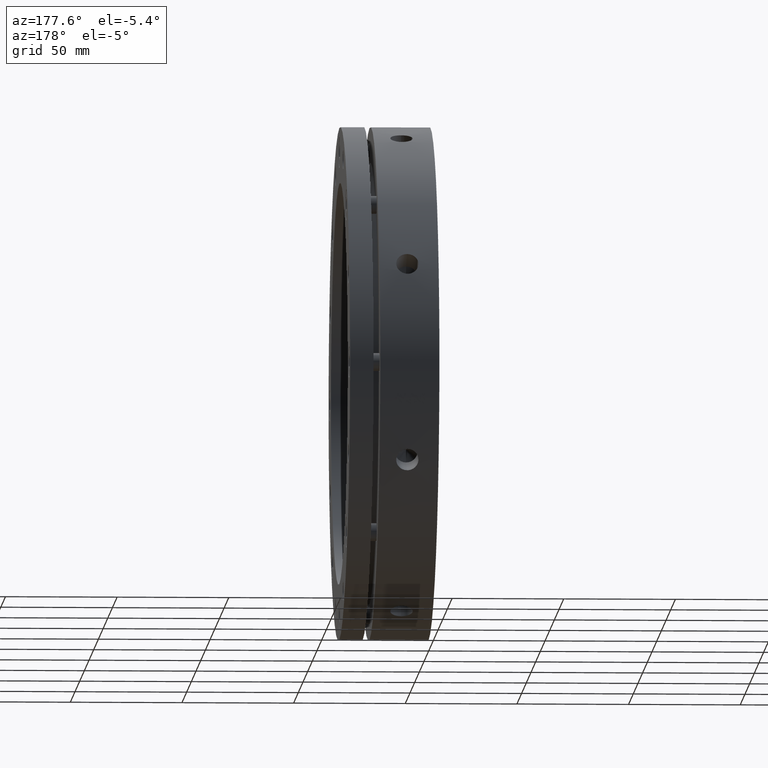
[diagram: clean part render]
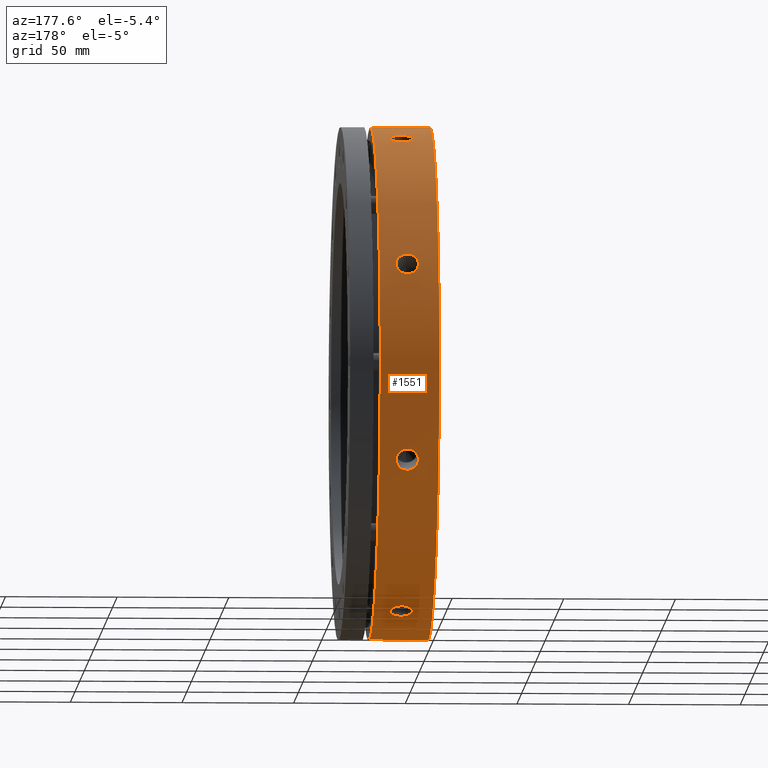
[diagram: same view with one face highlighted and labeled with its STEP entity id]
A machine part, auxiliary view. The second image highlights one B-rep face of the part: STEP entity #1551.
In plain terms, the highlighted cylindrical surface (partial cylindrical patch) has radius 115 mm, axis along (1, 0, 0).
Its self-contained STEP definition (entity closure, byte-faithful):
#753 = DIRECTION ( 'NONE',  ( 1.000000000000000000, 0.0000000000000000000, 0.0000000000000000000 ) ) ;
#755 = DIRECTION ( 'NONE',  ( 0.0000000000000000000, 0.0000000000000000000, -1.000000000000000000 ) ) ;
#756 = CARTESIAN_POINT ( 'NONE',  ( 19.99999999999996800, 0.0000000000000000000, 0.0000000000000000000 ) ) ;
#977 = CARTESIAN_POINT ( 'NONE',  ( -3.469446951953614200E-014, 0.0000000000000000000, -115.0000000000000000 ) ) ;
#978 = CARTESIAN_POINT ( 'NONE',  ( 13.99999999999997300, 39.34758135771272700, 108.0590942091325200 ) ) ;
#983 = CARTESIAN_POINT ( 'NONE',  ( 13.99999999999997300, 104.2322598854816400, -48.58637668282557300 ) ) ;
#993 = CARTESIAN_POINT ( 'NONE',  ( 13.99999999999997300, 48.58637668282557300, -104.2322598854816400 ) ) ;
#1011 = CARTESIAN_POINT ( 'NONE',  ( 13.99999999999997300, 48.58637668282559500, 104.2322598854816200 ) ) ;
#1022 = CARTESIAN_POINT ( 'NONE',  ( -3.469446951953614200E-014, 1.408343819019456100E-014, 115.0000000000000000 ) ) ;
#1033 = CARTESIAN_POINT ( 'NONE',  ( 26.49999999999996800, 0.0000000000000000000, -115.0000000000000000 ) ) ;
#1038 = CARTESIAN_POINT ( 'NONE',  ( 13.99999999999997300, 104.2322598854816400, 48.58637668282557300 ) ) ;
#1151 = LINE ( 'NONE', #2800, #1155 ) ;
#1155 = VECTOR ( 'NONE', #2801, 1000.000000000000000 ) ;
#1167 = LINE ( 'NONE', #2815, #1179 ) ;
#1176 = CIRCLE ( 'NONE', #3977, 115.0000000000000000 ) ;
#1179 = VECTOR ( 'NONE', #2816, 1000.000000000000000 ) ;
#1180 = CIRCLE ( 'NONE', #3980, 115.0000000000000000 ) ;
#1206 = FACE_BOUND ( 'NONE', #3737, .T. ) ;
#1225 = FACE_BOUND ( 'NONE', #3757, .T. ) ;
#1240 = CYLINDRICAL_SURFACE ( 'NONE', #5076, 115.0000000000000000 ) ;
#1242 = FACE_OUTER_BOUND ( 'NONE', #3776, .T. ) ;
#1243 = FACE_BOUND ( 'NONE', #3784, .T. ) ;
#1252 = FACE_BOUND ( 'NONE', #3581, .T. ) ;
#1551 = ADVANCED_FACE ( 'NONE', ( #1206, #1225, #1252, #1243, #1242 ), #1240, .T. ) ;
#1753 = CARTESIAN_POINT ( 'NONE',  ( 26.49999999999996800, 1.408343819019456100E-014, 115.0000000000000000 ) ) ;
#1764 = CARTESIAN_POINT ( 'NONE',  ( 13.99999999999997300, 39.34758135771270600, -108.0590942091325400 ) ) ;
#1765 = CARTESIAN_POINT ( 'NONE',  ( 13.99999999999997300, 108.0590942091325400, -39.34758135771271300 ) ) ;
#1778 = CARTESIAN_POINT ( 'NONE',  ( 13.99999999999997300, 108.0590942091325400, 39.34758135771270600 ) ) ;
#1988 = CARTESIAN_POINT ( 'NONE',  ( 14.32609906256477700, 104.2322598854816500, -48.58637668282558100 ) ) ;
#1990 = CARTESIAN_POINT ( 'NONE',  ( 13.99999999999997300, 104.2322598854816400, -48.58637668282557300 ) ) ;
#1992 = CARTESIAN_POINT ( 'NONE',  ( 14.65731185210549500, 104.2460697528367700, -48.55678156171777700 ) ) ;
#1993 = CARTESIAN_POINT ( 'NONE',  ( 15.29845133233620500, 104.3000413991085500, -48.44074172316028600 ) ) ;
#1994 = CARTESIAN_POINT ( 'NONE',  ( 15.61007314606122000, 104.3399017707130600, -48.35494413919177200 ) ) ;
#1995 = CARTESIAN_POINT ( 'NONE',  ( 16.21531849951118800, 104.4451062255750000, -48.12728446271165000 ) ) ;
#1996 = CARTESIAN_POINT ( 'NONE',  ( 16.50799158775230400, 104.5106837244098000, -47.98489142952728100 ) ) ;
#1997 = CARTESIAN_POINT ( 'NONE',  ( 17.04961188382979400, 104.6613442074772800, -47.65538633492638400 ) ) ;
#1998 = CARTESIAN_POINT ( 'NONE',  ( 17.30205821270577400, 104.7469574252543100, -47.46714032900989400 ) ) ;
#1999 = CARTESIAN_POINT ( 'NONE',  ( 17.76877663485314700, 104.9388133542657300, -47.04147056226605600 ) ) ;
#2000 = CARTESIAN_POINT ( 'NONE',  ( 17.97587211182022300, 105.0421502029489300, -46.81046920813552200 ) ) ;
#2001 = CARTESIAN_POINT ( 'NONE',  ( 18.24733851649115800, 105.2066340527179400, -46.43901902477755100 ) ) ;
#2002 = CARTESIAN_POINT ( 'NONE',  ( 18.33133406947193900, 105.2630898565706600, -46.31093642007667900 ) ) ;
#2003 = CARTESIAN_POINT ( 'NONE',  ( 18.48605926902557400, 105.3792439482654500, -46.04601897177224900 ) ) ;
#2004 = CARTESIAN_POINT ( 'NONE',  ( 18.55697224099207800, 105.4391905635264500, -45.90860530439295000 ) ) ;
#2005 = CARTESIAN_POINT ( 'NONE',  ( 18.74510784355893700, 105.6200621361895500, -45.49169446275017500 ) ) ;
#2006 = CARTESIAN_POINT ( 'NONE',  ( 18.83958129150653300, 105.7430173839411200, -45.20527495662018700 ) ) ;
#2007 = CARTESIAN_POINT ( 'NONE',  ( 18.96733128277940500, 105.9932088119654300, -44.61549389065655200 ) ) ;
#2008 = CARTESIAN_POINT ( 'NONE',  ( 19.00022713408200700, 106.1210793957093600, -44.31055859641728000 ) ) ;
#2009 = CARTESIAN_POINT ( 'NONE',  ( 18.99977047653728200, 106.3738584221784600, -43.70024415967616000 ) ) ;
#2010 = CARTESIAN_POINT ( 'NONE',  ( 18.96713894751583500, 106.4968198915134500, -43.39964770952023100 ) ) ;
#2011 = CARTESIAN_POINT ( 'NONE',  ( 18.87156109917237900, 106.6764383604616900, -42.95536073420404900 ) ) ;
#2012 = CARTESIAN_POINT ( 'NONE',  ( 18.83187230104958200, 106.7355032875239700, -42.80837536897457300 ) ) ;
#2013 = CARTESIAN_POINT ( 'NONE',  ( 18.73647590778735500, 106.8520254569371100, -42.51669459779449800 ) ) ;
#2014 = CARTESIAN_POINT ( 'NONE',  ( 18.68051001014757500, 106.9096239314587300, -42.37163214953985600 ) ) ;
#2015 = CARTESIAN_POINT ( 'NONE',  ( 18.49201195012428300, 107.0763382804714800, -41.94936687452434400 ) ) ;
#2016 = CARTESIAN_POINT ( 'NONE',  ( 18.33826837024093900, 107.1806624119005600, -41.68188363874006100 ) ) ;
#2017 = CARTESIAN_POINT ( 'NONE',  ( 17.97510424763524400, 107.3764178828867300, -41.17497664075769800 ) ) ;
#2018 = CARTESIAN_POINT ( 'NONE',  ( 17.76380294476515000, 107.4681640623966700, -40.93466572447626100 ) ) ;
#2019 = CARTESIAN_POINT ( 'NONE',  ( 17.30231171586614600, 107.6314169450243700, -40.50347184283270300 ) ) ;
#2020 = CARTESIAN_POINT ( 'NONE',  ( 17.05051377550065100, 107.7040391750772700, -40.30971756443694400 ) ) ;
#2021 = CARTESIAN_POINT ( 'NONE',  ( 16.50376413305150100, 107.8315853074295100, -39.96726904402908100 ) ) ;
#2022 = CARTESIAN_POINT ( 'NONE',  ( 16.21277194749729500, 107.8853572294431900, -39.82166774184856500 ) ) ;
#2023 = CARTESIAN_POINT ( 'NONE',  ( 15.61106151014834600, 107.9713987100443400, -39.58778330322861200 ) ) ;
#2024 = CARTESIAN_POINT ( 'NONE',  ( 15.29590087746698600, 108.0043275024235100, -39.49771320695119000 ) ) ;
#2025 = CARTESIAN_POINT ( 'NONE',  ( 14.65051678236478200, 108.0482865028874600, -39.37730173106398700 ) ) ;
#2026 = CARTESIAN_POINT ( 'NONE',  ( 14.32609889449413400, 108.0590942091325400, -39.34758135771269800 ) ) ;
#2027 = CARTESIAN_POINT ( 'NONE',  ( 13.99999999999997300, 108.0590942091325400, -39.34758135771271300 ) ) ;
#2032 = CARTESIAN_POINT ( 'NONE',  ( 14.32609906256477600, 108.0590942091325400, 39.34758135771270600 ) ) ;
#2037 = CARTESIAN_POINT ( 'NONE',  ( 13.99999999999997300, 108.0590942091325400, 39.34758135771270600 ) ) ;
#2039 = CARTESIAN_POINT ( 'NONE',  ( 14.65731185210550100, 108.0479323491612600, 39.37827331939215700 ) ) ;
#2040 = CARTESIAN_POINT ( 'NONE',  ( 15.29845133233621500, 108.0040435095001100, 39.49848959319457700 ) ) ;
#2041 = CARTESIAN_POINT ( 'NONE',  ( 15.61007314606122900, 107.9715609951287000, 39.58734318569025800 ) ) ;
#2042 = CARTESIAN_POINT ( 'NONE',  ( 16.21531849951118800, 107.8849720775307300, 39.82271367017599300 ) ) ;
#2043 = CARTESIAN_POINT ( 'NONE',  ( 16.50799158775231100, 107.8306552922916900, 39.96977104365372900 ) ) ;
#2044 = CARTESIAN_POINT ( 'NONE',  ( 17.04961188382980800, 107.7041930546978000, 40.30929937971541900 ) ) ;
#2045 = CARTESIAN_POINT ( 'NONE',  ( 17.30205821270577400, 107.6316207142322300, 40.50294709387956300 ) ) ;
#2046 = CARTESIAN_POINT ( 'NONE',  ( 17.76877663485315400, 107.4662893640364100, 40.93960370090503200 ) ) ;
#2047 = CARTESIAN_POINT ( 'NONE',  ( 17.97587211182023700, 107.3760169265177900, 41.17601651132440600 ) ) ;
#2048 = CARTESIAN_POINT ( 'NONE',  ( 18.24733851649116900, 107.2296696285597600, 41.55497910041712800 ) ) ;
#2049 = CARTESIAN_POINT ( 'NONE',  ( 18.33133406947193600, 107.1790218319652900, 41.68546746049472800 ) ) ;
#2050 = CARTESIAN_POINT ( 'NONE',  ( 18.48605926902558100, 107.0738302537145600, 41.95492573054539100 ) ) ;
#2051 = CARTESIAN_POINT ( 'NONE',  ( 18.55697224099208100, 107.0190527758431500, 42.09448052473725000 ) ) ;
#2052 = CARTESIAN_POINT ( 'NONE',  ( 18.74510784355893400, 106.8521478081212700, 42.51717652356695300 ) ) ;
#2053 = CARTESIAN_POINT ( 'NONE',  ( 18.83958129150653000, 106.7365611225402400, 42.80664818808321600 ) ) ;
#2054 = CARTESIAN_POINT ( 'NONE',  ( 18.96733128277939800, 106.4964349867326800, 43.40059843459224000 ) ) ;
#2055 = CARTESIAN_POINT ( 'NONE',  ( 19.00022713408200700, 106.3712313292326400, 43.70663840585159900 ) ) ;
#2056 = CARTESIAN_POINT ( 'NONE',  ( 18.99977047653728900, 106.1184156161149300, 44.31693764648530000 ) ) ;
#2057 = CARTESIAN_POINT ( 'NONE',  ( 18.96713894751584200, 105.9928087166005200, 44.61643832358259900 ) ) ;
#2058 = CARTESIAN_POINT ( 'NONE',  ( 18.87156109917238200, 105.8056598209812200, 45.05760609404117600 ) ) ;
#2059 = CARTESIAN_POINT ( 'NONE',  ( 18.83187230104957900, 105.7434906829483300, 45.20330565298616000 ) ) ;
#2060 = CARTESIAN_POINT ( 'NONE',  ( 18.73647590778734800, 105.6196348478557800, 45.49194872037990200 ) ) ;
#2061 = CARTESIAN_POINT ( 'NONE',  ( 18.68051001014757900, 105.5577884789196300, 45.63525163315652100 ) ) ;
#2062 = CARTESIAN_POINT ( 'NONE',  ( 18.49201195012428700, 105.3770866862046100, 46.05172311928761500 ) ) ;
#2063 = CARTESIAN_POINT ( 'NONE',  ( 18.33826837024092500, 105.2617157771026700, 46.31463062993929500 ) ) ;
#2064 = CARTESIAN_POINT ( 'NONE',  ( 17.97510424763524000, 105.0416984223871400, 46.81148802663222600 ) ) ;
#2065 = CARTESIAN_POINT ( 'NONE',  ( 17.76380294476512800, 104.9366472895707400, 47.04628785080741000 ) ) ;
#2066 = CARTESIAN_POINT ( 'NONE',  ( 17.30231171586612900, 104.7471843922087700, 47.46662518887801200 ) ) ;
#2067 = CARTESIAN_POINT ( 'NONE',  ( 17.05051377550064400, 104.6615310994065500, 47.65498182435084100 ) ) ;
#2068 = CARTESIAN_POINT ( 'NONE',  ( 16.50376413305150100, 104.5095721635192500, 47.98731823043898000 ) ) ;
#2069 = CARTESIAN_POINT ( 'NONE',  ( 16.21277194749729800, 104.4446389860911600, 48.12829638925371300 ) ) ;
#2070 = CARTESIAN_POINT ( 'NONE',  ( 15.61106151014834300, 104.3400982279253700, 48.35451817621228800 ) ) ;
#2071 = CARTESIAN_POINT ( 'NONE',  ( 15.29590087746698000, 104.2996932244529900, 48.44149152445972800 ) ) ;
#2072 = CARTESIAN_POINT ( 'NONE',  ( 14.65051678236478400, 104.2456331606427700, 48.55771900291453800 ) ) ;
#2073 = CARTESIAN_POINT ( 'NONE',  ( 14.32609889449412500, 104.2322598854816200, 48.58637668282555900 ) ) ;
#2074 = CARTESIAN_POINT ( 'NONE',  ( 13.99999999999997300, 104.2322598854816400, 48.58637668282557300 ) ) ;
#2079 = CARTESIAN_POINT ( 'NONE',  ( 13.99999999999997300, 108.0590942091325400, -39.34758135771271300 ) ) ;
#2080 = CARTESIAN_POINT ( 'NONE',  ( 13.67390110557905700, 108.0590942091325800, -39.34758135771270600 ) ) ;
#2085 = CARTESIAN_POINT ( 'NONE',  ( 13.34268848779650300, 108.0479323608076500, -39.37827328733082800 ) ) ;
#2086 = CARTESIAN_POINT ( 'NONE',  ( 12.70154931951875600, 108.0040435657438300, -39.49848943929744400 ) ) ;
#2087 = CARTESIAN_POINT ( 'NONE',  ( 12.38992765287287800, 107.9715610842116600, -39.58734294231504000 ) ) ;
#2088 = CARTESIAN_POINT ( 'NONE',  ( 11.78468257402197000, 107.8849722563306300, -39.82271318537807000 ) ) ;
#2089 = CARTESIAN_POINT ( 'NONE',  ( 11.49200958670857100, 107.8306555239143400, -39.96977041799444000 ) ) ;
#2090 = CARTESIAN_POINT ( 'NONE',  ( 10.95038945515205200, 107.7041934099355000, -40.30929842976022600 ) ) ;
#2091 = CARTESIAN_POINT ( 'NONE',  ( 10.69794319038452500, 107.6316211410367700, -40.50294595836489700 ) ) ;
#2092 = CARTESIAN_POINT ( 'NONE',  ( 10.23122484986096700, 107.4662899602136200, -40.93960213462274600 ) ) ;
#2093 = CARTESIAN_POINT ( 'NONE',  ( 10.02412932885836100, 107.3760175922458400, -41.17601477374545000 ) ) ;
#2094 = CARTESIAN_POINT ( 'NONE',  ( 9.752662862781431100, 107.2296704275940400, -41.55497703818477400 ) ) ;
#2095 = CARTESIAN_POINT ( 'NONE',  ( 9.668667282432357600, 107.1790226776416700, -41.68546528570285400 ) ) ;
#2096 = CARTESIAN_POINT ( 'NONE',  ( 9.513942011802482700, 107.0738311979282300, -41.95492332036298000 ) ) ;
#2097 = CARTESIAN_POINT ( 'NONE',  ( 9.443028987432743500, 107.0190537664224200, -42.09447800595531000 ) ) ;
#2098 = CARTESIAN_POINT ( 'NONE',  ( 9.254893191841445000, 106.8521489251184400, -42.51717371488103900 ) ) ;
#2099 = CARTESIAN_POINT ( 'NONE',  ( 9.160419590217250300, 106.7365623281393400, -42.80664518026610200 ) ) ;
#2100 = CARTESIAN_POINT ( 'NONE',  ( 9.032669218784239000, 106.4964363812344700, -43.40059501107854300 ) ) ;
#2101 = CARTESIAN_POINT ( 'NONE',  ( 8.999773132721605500, 106.3712329640480200, -43.70663442874548800 ) ) ;
#2102 = CARTESIAN_POINT ( 'NONE',  ( 9.000229251016138600, 106.1184171071528400, -44.31693407775520700 ) ) ;
#2103 = CARTESIAN_POINT ( 'NONE',  ( 9.032860556750392800, 105.9928101368805100, -44.61643495095615500 ) ) ;
#2104 = CARTESIAN_POINT ( 'NONE',  ( 9.128438114674182200, 105.8056611355373200, -45.05760300751994400 ) ) ;
#2105 = CARTESIAN_POINT ( 'NONE',  ( 9.168126823585947000, 105.7434919623415900, -45.20330266046300200 ) ) ;
#2106 = CARTESIAN_POINT ( 'NONE',  ( 9.263523050898205800, 105.6196360569436600, -45.49194591355684000 ) ) ;
#2107 = CARTESIAN_POINT ( 'NONE',  ( 9.319488879802976900, 105.5577896429931300, -45.63524894098576800 ) ) ;
#2108 = CARTESIAN_POINT ( 'NONE',  ( 9.507986774047479300, 105.3770877093959800, -46.05172077964959200 ) ) ;
#2109 = CARTESIAN_POINT ( 'NONE',  ( 9.661730277822096400, 105.2617167117982100, -46.31462850689849400 ) ) ;
#2110 = CARTESIAN_POINT ( 'NONE',  ( 10.02489429791634700, 105.0416991878975400, -46.81148631015815900 ) ) ;
#2111 = CARTESIAN_POINT ( 'NONE',  ( 10.23619559748431100, 104.9366479617919800, -47.04628635248296600 ) ) ;
#2112 = CARTESIAN_POINT ( 'NONE',  ( 10.69768688890983000, 104.7471848912623400, -47.46662408864347100 ) ) ;
#2113 = CARTESIAN_POINT ( 'NONE',  ( 10.94948488349064400, 104.6615315210196500, -47.65498089903997700 ) ) ;
#2114 = CARTESIAN_POINT ( 'NONE',  ( 11.49623467292051900, 104.5095724464727900, -47.98731761485224500 ) ) ;
#2115 = CARTESIAN_POINT ( 'NONE',  ( 11.78722699252724700, 104.4446391996430900, -48.12829592614139100 ) ) ;
#2116 = CARTESIAN_POINT ( 'NONE',  ( 12.38893768991650800, 104.3400983375130400, -48.35451794006402100 ) ) ;
#2117 = CARTESIAN_POINT ( 'NONE',  ( 12.70409845935930300, 104.2996932943493200, -48.44149137405392500 ) ) ;
#2118 = CARTESIAN_POINT ( 'NONE',  ( 13.34948288335505300, 104.2456331742973200, -48.55771897368845200 ) ) ;
#2119 = CARTESIAN_POINT ( 'NONE',  ( 13.67390093750840300, 104.2322598854816200, -48.58637668282557300 ) ) ;
#2120 = CARTESIAN_POINT ( 'NONE',  ( 13.99999999999997300, 104.2322598854816400, -48.58637668282557300 ) ) ;
#2316 = CARTESIAN_POINT ( 'NONE',  ( 13.99999999999997300, 104.2322598854816400, 48.58637668282557300 ) ) ;
#2317 = CARTESIAN_POINT ( 'NONE',  ( 13.67390110557905700, 104.2322598854816700, 48.58637668282558100 ) ) ;
#2321 = CARTESIAN_POINT ( 'NONE',  ( 13.34268848779649900, 104.2460697384012200, 48.55678159262383500 ) ) ;
#2322 = CARTESIAN_POINT ( 'NONE',  ( 12.70154931951874900, 104.3000413300572500, 48.44074187175229400 ) ) ;
#2323 = CARTESIAN_POINT ( 'NONE',  ( 12.38992765287288300, 104.3399016616119900, 48.35494437427524900 ) ) ;
#2324 = CARTESIAN_POINT ( 'NONE',  ( 11.78468257402197800, 104.4451060092016800, 48.12728493194615000 ) ) ;
#2325 = CARTESIAN_POINT ( 'NONE',  ( 11.49200958670858200, 104.5106834457838000, 47.98489203571714500 ) ) ;
#2326 = CARTESIAN_POINT ( 'NONE',  ( 10.95038945515206500, 104.6613437869485500, 47.65538725783716200 ) ) ;
#2327 = CARTESIAN_POINT ( 'NONE',  ( 10.69794319038452800, 104.7469569241205800, 47.46714143373640800 ) ) ;
#2328 = CARTESIAN_POINT ( 'NONE',  ( 10.23122484986097000, 104.9388126682977900, 47.04147209135580000 ) ) ;
#2329 = CARTESIAN_POINT ( 'NONE',  ( 10.02412932885836300, 105.0421494450359000, 46.81047090753016700 ) ) ;
#2330 = CARTESIAN_POINT ( 'NONE',  ( 9.752662862781440000, 105.2066331595020900, 46.43902104799861500 ) ) ;
#2331 = CARTESIAN_POINT ( 'NONE',  ( 9.668667282432366500, 105.2630889167440800, 46.31093855587027300 ) ) ;
#2332 = CARTESIAN_POINT ( 'NONE',  ( 9.513942011802489800, 105.3792429116690100, 46.04602134368849400 ) ) ;
#2333 = CARTESIAN_POINT ( 'NONE',  ( 9.443028987432757800, 105.4391894829240200, 45.90860778588605500 ) ) ;
#2334 = CARTESIAN_POINT ( 'NONE',  ( 9.254893191841452100, 105.6200609399849700, 45.49169723862733200 ) ) ;
#2335 = CARTESIAN_POINT ( 'NONE',  ( 9.160419590217253800, 105.7430161095805400, 45.20527793595534400 ) ) ;
#2336 = CARTESIAN_POINT ( 'NONE',  ( 9.032669218784240800, 105.9932073772373000, 44.61549729750800700 ) ) ;
#2337 = CARTESIAN_POINT ( 'NONE',  ( 8.999773132721605500, 106.1210777394596800, 44.31056256464502500 ) ) ;
#2338 = CARTESIAN_POINT ( 'NONE',  ( 9.000229251016138600, 106.3738569530281800, 43.70024773747241700 ) ) ;
#2339 = CARTESIAN_POINT ( 'NONE',  ( 9.032860556750391000, 106.4968185109960400, 43.39965109861689300 ) ) ;
#2340 = CARTESIAN_POINT ( 'NONE',  ( 9.128438114674175100, 106.6764371074931400, 42.95536384623569100 ) ) ;
#2341 = CARTESIAN_POINT ( 'NONE',  ( 9.168126823585939900, 106.7355020761582100, 42.80837838967566000 ) ) ;
#2342 = CARTESIAN_POINT ( 'NONE',  ( 9.263523050898204000, 106.8520243271677500, 42.51669743747238100 ) ) ;
#2343 = CARTESIAN_POINT ( 'NONE',  ( 9.319488879802973400, 106.9096228509308700, 42.37163487631635000 ) ) ;
#2344 = CARTESIAN_POINT ( 'NONE',  ( 9.507986774047468600, 107.0763373496031400, 41.94936925240384800 ) ) ;
#2345 = CARTESIAN_POINT ( 'NONE',  ( 9.661730277822082200, 107.1806615716135400, 41.68188580088615700 ) ) ;
#2346 = CARTESIAN_POINT ( 'NONE',  ( 10.02489429791633700, 107.3764172104538700, 41.17497839578573600 ) ) ;
#2347 = CARTESIAN_POINT ( 'NONE',  ( 10.23619559748430600, 107.4681634782534400, 40.93466725928378500 ) ) ;
#2348 = CARTESIAN_POINT ( 'NONE',  ( 10.69768688890982300, 107.6314165199251800, 40.50347297370014100 ) ) ;
#2349 = CARTESIAN_POINT ( 'NONE',  ( 10.94948488349062800, 107.7040388189091400, 40.30971851685605900 ) ) ;
#2350 = CARTESIAN_POINT ( 'NONE',  ( 11.49623467292050300, 107.8315850722223800, 39.96726967939301300 ) ) ;
#2351 = CARTESIAN_POINT ( 'NONE',  ( 11.78722699252723800, 107.8853570529774000, 39.82166822032247200 ) ) ;
#2352 = CARTESIAN_POINT ( 'NONE',  ( 12.38893768991648700, 107.9713986205525100, 39.58778354770084500 ) ) ;
#2353 = CARTESIAN_POINT ( 'NONE',  ( 12.70409845935928700, 108.0043274454946200, 39.49771336272829100 ) ) ;
#2354 = CARTESIAN_POINT ( 'NONE',  ( 13.34948288335503500, 108.0482864918767700, 39.37730176138521200 ) ) ;
#2355 = CARTESIAN_POINT ( 'NONE',  ( 13.67390093750839400, 108.0590942091325400, 39.34758135771269800 ) ) ;
#2356 = CARTESIAN_POINT ( 'NONE',  ( 13.99999999999997300, 108.0590942091325400, 39.34758135771270600 ) ) ;
#2420 = CARTESIAN_POINT ( 'NONE',  ( 13.67390110557905400, 39.34758135771273400, 108.0590942091325400 ) ) ;
#2421 = CARTESIAN_POINT ( 'NONE',  ( 13.99999999999997300, 39.34758135771272700, 108.0590942091325200 ) ) ;
#2426 = CARTESIAN_POINT ( 'NONE',  ( 13.34268848779650300, 39.37827328733084200, 108.0479323608076600 ) ) ;
#2427 = CARTESIAN_POINT ( 'NONE',  ( 12.70154931951875300, 39.49848943929747200, 108.0040435657438100 ) ) ;
#2428 = CARTESIAN_POINT ( 'NONE',  ( 12.38992765287287800, 39.58734294231505400, 107.9715610842116700 ) ) ;
#2429 = CARTESIAN_POINT ( 'NONE',  ( 11.78468257402197700, 39.82271318537807000, 107.8849722563305700 ) ) ;
#2430 = CARTESIAN_POINT ( 'NONE',  ( 11.49200958670856900, 39.96977041799444000, 107.8306555239143300 ) ) ;
#2431 = CARTESIAN_POINT ( 'NONE',  ( 10.95038945515205100, 40.30929842976023300, 107.7041934099355100 ) ) ;
#2432 = CARTESIAN_POINT ( 'NONE',  ( 10.69794319038452100, 40.50294595836490400, 107.6316211410367600 ) ) ;
#2433 = CARTESIAN_POINT ( 'NONE',  ( 10.23122484986096800, 40.93960213462276700, 107.4662899602135700 ) ) ;
#2434 = CARTESIAN_POINT ( 'NONE',  ( 10.02412932885836000, 41.17601477374546400, 107.3760175922458200 ) ) ;
#2435 = CARTESIAN_POINT ( 'NONE',  ( 9.752662862781434700, 41.55497703818482300, 107.2296704275940600 ) ) ;
#2436 = CARTESIAN_POINT ( 'NONE',  ( 9.668667282432361200, 41.68546528570287500, 107.1790226776416700 ) ) ;
#2437 = CARTESIAN_POINT ( 'NONE',  ( 9.513942011802489800, 41.95492332036300100, 107.0738311979282300 ) ) ;
#2438 = CARTESIAN_POINT ( 'NONE',  ( 9.443028987432748900, 42.09447800595533800, 107.0190537664224300 ) ) ;
#2439 = CARTESIAN_POINT ( 'NONE',  ( 9.254893191841445000, 42.51717371488106800, 106.8521489251184700 ) ) ;
#2440 = CARTESIAN_POINT ( 'NONE',  ( 9.160419590217250300, 42.80664518026611600, 106.7365623281393400 ) ) ;
#2441 = CARTESIAN_POINT ( 'NONE',  ( 9.032669218784239000, 43.40059501107853600, 106.4964363812344600 ) ) ;
#2442 = CARTESIAN_POINT ( 'NONE',  ( 8.999773132721605500, 43.70663442874548800, 106.3712329640480200 ) ) ;
#2443 = CARTESIAN_POINT ( 'NONE',  ( 9.000229251016136800, 44.31693407775519900, 106.1184171071528500 ) ) ;
#2444 = CARTESIAN_POINT ( 'NONE',  ( 9.032860556750389200, 44.61643495095616900, 105.9928101368805100 ) ) ;
#2445 = CARTESIAN_POINT ( 'NONE',  ( 9.128438114674178600, 45.05760300751997200, 105.8056611355373300 ) ) ;
#2446 = CARTESIAN_POINT ( 'NONE',  ( 9.168126823585941700, 45.20330266046300900, 105.7434919623415700 ) ) ;
#2447 = CARTESIAN_POINT ( 'NONE',  ( 9.263523050898205800, 45.49194591355686200, 105.6196360569436600 ) ) ;
#2448 = CARTESIAN_POINT ( 'NONE',  ( 9.319488879802973400, 45.63524894098578200, 105.5577896429931300 ) ) ;
#2449 = CARTESIAN_POINT ( 'NONE',  ( 9.507986774047472200, 46.05172077964959200, 105.3770877093959800 ) ) ;
#2450 = CARTESIAN_POINT ( 'NONE',  ( 9.661730277822091000, 46.31462850689851500, 105.2617167117982400 ) ) ;
#2451 = CARTESIAN_POINT ( 'NONE',  ( 10.02489429791634000, 46.81148631015816600, 105.0416991878974800 ) ) ;
#2452 = CARTESIAN_POINT ( 'NONE',  ( 10.23619559748430800, 47.04628635248299400, 104.9366479617919800 ) ) ;
#2453 = CARTESIAN_POINT ( 'NONE',  ( 10.69768688890983200, 47.46662408864351300, 104.7471848912623200 ) ) ;
#2454 = CARTESIAN_POINT ( 'NONE',  ( 10.94948488349063700, 47.65498089903998400, 104.6615315210196700 ) ) ;
#2455 = CARTESIAN_POINT ( 'NONE',  ( 11.49623467292051700, 47.98731761485226600, 104.5095724464728600 ) ) ;
#2456 = CARTESIAN_POINT ( 'NONE',  ( 11.78722699252724800, 48.12829592614141200, 104.4446391996431200 ) ) ;
#2457 = CARTESIAN_POINT ( 'NONE',  ( 12.38893768991650800, 48.35451794006404900, 104.3400983375130300 ) ) ;
#2458 = CARTESIAN_POINT ( 'NONE',  ( 12.70409845935929700, 48.44149137405396000, 104.2996932943493500 ) ) ;
#2459 = CARTESIAN_POINT ( 'NONE',  ( 13.34948288335505000, 48.55771897368849500, 104.2456331742974100 ) ) ;
#2460 = CARTESIAN_POINT ( 'NONE',  ( 13.67390093750841000, 48.58637668282559500, 104.2322598854816700 ) ) ;
#2461 = CARTESIAN_POINT ( 'NONE',  ( 13.99999999999997300, 48.58637668282559500, 104.2322598854816200 ) ) ;
#2709 = CARTESIAN_POINT ( 'NONE',  ( 14.32609906256477200, 39.34758135771270600, -108.0590942091325500 ) ) ;
#2718 = CARTESIAN_POINT ( 'NONE',  ( 13.99999999999997300, 39.34758135771270600, -108.0590942091325400 ) ) ;
#2720 = CARTESIAN_POINT ( 'NONE',  ( 13.99999999999997300, 48.58637668282557300, -104.2322598854816400 ) ) ;
#2721 = CARTESIAN_POINT ( 'NONE',  ( 13.67390110557905600, 48.58637668282557300, -104.2322598854816500 ) ) ;
#2725 = CARTESIAN_POINT ( 'NONE',  ( 13.34268848779650100, 48.55678159262382100, -104.2460697384012200 ) ) ;
#2726 = CARTESIAN_POINT ( 'NONE',  ( 12.70154931951875300, 48.44074187175230200, -104.3000413300572000 ) ) ;
#2727 = CARTESIAN_POINT ( 'NONE',  ( 12.38992765287287900, 48.35494437427523500, -104.3399016616119600 ) ) ;
#2728 = CARTESIAN_POINT ( 'NONE',  ( 11.78468257402198200, 48.12728493194615700, -104.4451060092016900 ) ) ;
#2729 = CARTESIAN_POINT ( 'NONE',  ( 11.49200958670857600, 47.98489203571714500, -104.5106834457838100 ) ) ;
#2730 = CARTESIAN_POINT ( 'NONE',  ( 10.95038945515205800, 47.65538725783715500, -104.6613437869485500 ) ) ;
#2731 = CARTESIAN_POINT ( 'NONE',  ( 10.69794319038452600, 47.46714143373639400, -104.7469569241205700 ) ) ;
#2732 = CARTESIAN_POINT ( 'NONE',  ( 10.23122484986096800, 47.04147209135582100, -104.9388126682978100 ) ) ;
#2733 = CARTESIAN_POINT ( 'NONE',  ( 10.02412932885836000, 46.81047090753016000, -105.0421494450359200 ) ) ;
#2734 = CARTESIAN_POINT ( 'NONE',  ( 9.752662862781432900, 46.43902104799860800, -105.2066331595020900 ) ) ;
#2735 = CARTESIAN_POINT ( 'NONE',  ( 9.668667282432363000, 46.31093855587027300, -105.2630889167441100 ) ) ;
#2736 = CARTESIAN_POINT ( 'NONE',  ( 9.513942011802489800, 46.04602134368850100, -105.3792429116690200 ) ) ;
#2737 = CARTESIAN_POINT ( 'NONE',  ( 9.443028987432748900, 45.90860778588604800, -105.4391894829240400 ) ) ;
#2738 = CARTESIAN_POINT ( 'NONE',  ( 9.254893191841445000, 45.49169723862733900, -105.6200609399849700 ) ) ;
#2739 = CARTESIAN_POINT ( 'NONE',  ( 9.160419590217250300, 45.20527793595532300, -105.7430161095805200 ) ) ;
#2740 = CARTESIAN_POINT ( 'NONE',  ( 9.032669218784239000, 44.61549729750798600, -105.9932073772373300 ) ) ;
#2741 = CARTESIAN_POINT ( 'NONE',  ( 8.999773132721605500, 44.31056256464501100, -106.1210777394597100 ) ) ;
#2742 = CARTESIAN_POINT ( 'NONE',  ( 9.000229251016140400, 43.70024773747240200, -106.3738569530282200 ) ) ;
#2743 = CARTESIAN_POINT ( 'NONE',  ( 9.032860556750392800, 43.39965109861687900, -106.4968185109960500 ) ) ;
#2744 = CARTESIAN_POINT ( 'NONE',  ( 9.128438114674173300, 42.95536384623566300, -106.6764371074931000 ) ) ;
#2745 = CARTESIAN_POINT ( 'NONE',  ( 9.168126823585943400, 42.80837838967561000, -106.7355020761581700 ) ) ;
#2746 = CARTESIAN_POINT ( 'NONE',  ( 9.263523050898209400, 42.51669743747235900, -106.8520243271677400 ) ) ;
#2747 = CARTESIAN_POINT ( 'NONE',  ( 9.319488879802973400, 42.37163487631632800, -106.9096228509308300 ) ) ;
#2748 = CARTESIAN_POINT ( 'NONE',  ( 9.507986774047472200, 41.94936925240382700, -107.0763373496031100 ) ) ;
#2749 = CARTESIAN_POINT ( 'NONE',  ( 9.661730277822083900, 41.68188580088615000, -107.1806615716135400 ) ) ;
#2750 = CARTESIAN_POINT ( 'NONE',  ( 10.02489429791633700, 41.17497839578572200, -107.3764172104538500 ) ) ;
#2751 = CARTESIAN_POINT ( 'NONE',  ( 10.23619559748430600, 40.93466725928378500, -107.4681634782534400 ) ) ;
#2752 = CARTESIAN_POINT ( 'NONE',  ( 10.69768688890982800, 40.50347297370014800, -107.6314165199252100 ) ) ;
#2753 = CARTESIAN_POINT ( 'NONE',  ( 10.94948488349063700, 40.30971851685605100, -107.7040388189091400 ) ) ;
#2754 = CARTESIAN_POINT ( 'NONE',  ( 11.49623467292051000, 39.96726967939302000, -107.8315850722223500 ) ) ;
#2755 = CARTESIAN_POINT ( 'NONE',  ( 11.78722699252723900, 39.82166822032247200, -107.8853570529773800 ) ) ;
#2756 = CARTESIAN_POINT ( 'NONE',  ( 12.38893768991648900, 39.58778354770085200, -107.9713986205524800 ) ) ;
#2757 = CARTESIAN_POINT ( 'NONE',  ( 12.70409845935929200, 39.49771336272830500, -108.0043274454946700 ) ) ;
#2758 = CARTESIAN_POINT ( 'NONE',  ( 13.34948288335503900, 39.37730176138521900, -108.0482864918768100 ) ) ;
#2759 = CARTESIAN_POINT ( 'NONE',  ( 13.67390093750839800, 39.34758135771270600, -108.0590942091325500 ) ) ;
#2760 = CARTESIAN_POINT ( 'NONE',  ( 13.99999999999997300, 39.34758135771270600, -108.0590942091325400 ) ) ;
#2761 = CARTESIAN_POINT ( 'NONE',  ( 14.65731185210550100, 39.37827331939217100, -108.0479323491612600 ) ) ;
#2762 = CARTESIAN_POINT ( 'NONE',  ( 15.29845133233621000, 39.49848959319454900, -108.0040435095000900 ) ) ;
#2763 = CARTESIAN_POINT ( 'NONE',  ( 15.61007314606122200, 39.58734318569024400, -107.9715609951286600 ) ) ;
#2764 = CARTESIAN_POINT ( 'NONE',  ( 16.21531849951117700, 39.82271367017600000, -107.8849720775307300 ) ) ;
#2765 = CARTESIAN_POINT ( 'NONE',  ( 16.50799158775229700, 39.96977104365371500, -107.8306552922916700 ) ) ;
#2766 = CARTESIAN_POINT ( 'NONE',  ( 17.04961188382979000, 40.30929937971542600, -107.7041930546977800 ) ) ;
#2767 = CARTESIAN_POINT ( 'NONE',  ( 17.30205821270577000, 40.50294709387955500, -107.6316207142322100 ) ) ;
#2768 = CARTESIAN_POINT ( 'NONE',  ( 17.76877663485315000, 40.93960370090501000, -107.4662893640364100 ) ) ;
#2769 = CARTESIAN_POINT ( 'NONE',  ( 17.97587211182022000, 41.17601651132438400, -107.3760169265177800 ) ) ;
#2770 = CARTESIAN_POINT ( 'NONE',  ( 18.24733851649115500, 41.55497910041712800, -107.2296696285597500 ) ) ;
#2771 = CARTESIAN_POINT ( 'NONE',  ( 18.33133406947193600, 41.68546746049474200, -107.1790218319653100 ) ) ;
#2772 = CARTESIAN_POINT ( 'NONE',  ( 18.48605926902557400, 41.95492573054539100, -107.0738302537145900 ) ) ;
#2773 = CARTESIAN_POINT ( 'NONE',  ( 18.55697224099208900, 42.09448052473725700, -107.0190527758431900 ) ) ;
#2774 = CARTESIAN_POINT ( 'NONE',  ( 18.74510784355893700, 42.51717652356696000, -106.8521478081213000 ) ) ;
#2775 = CARTESIAN_POINT ( 'NONE',  ( 18.83958129150653300, 42.80664818808320900, -106.7365611225403100 ) ) ;
#2776 = CARTESIAN_POINT ( 'NONE',  ( 18.96733128277938700, 43.40059843459221900, -106.4964349867326500 ) ) ;
#2777 = CARTESIAN_POINT ( 'NONE',  ( 19.00022713408200300, 43.70663840585157800, -106.3712313292326300 ) ) ;
#2778 = CARTESIAN_POINT ( 'NONE',  ( 18.99977047653728900, 44.31693764648530000, -106.1184156161149400 ) ) ;
#2779 = CARTESIAN_POINT ( 'NONE',  ( 18.96713894751584200, 44.61643832358259900, -105.9928087166005600 ) ) ;
#2780 = CARTESIAN_POINT ( 'NONE',  ( 18.87156109917238200, 45.05760609404115500, -105.8056598209812500 ) ) ;
#2781 = CARTESIAN_POINT ( 'NONE',  ( 18.83187230104958200, 45.20330565298612400, -105.7434906829482900 ) ) ;
#2782 = CARTESIAN_POINT ( 'NONE',  ( 18.73647590778734800, 45.49194872037988100, -105.6196348478557600 ) ) ;
#2783 = CARTESIAN_POINT ( 'NONE',  ( 18.68051001014758200, 45.63525163315650000, -105.5577884789196300 ) ) ;
#2784 = CARTESIAN_POINT ( 'NONE',  ( 18.49201195012428700, 46.05172311928760800, -105.3770866862045800 ) ) ;
#2785 = CARTESIAN_POINT ( 'NONE',  ( 18.33826837024092900, 46.31463062993928000, -105.2617157771026900 ) ) ;
#2786 = CARTESIAN_POINT ( 'NONE',  ( 17.97510424763524400, 46.81148802663222600, -105.0416984223871600 ) ) ;
#2787 = CARTESIAN_POINT ( 'NONE',  ( 17.76380294476514600, 47.04628785080738900, -104.9366472895707600 ) ) ;
#2788 = CARTESIAN_POINT ( 'NONE',  ( 17.30231171586613900, 47.46662518887800500, -104.7471843922087700 ) ) ;
#2789 = CARTESIAN_POINT ( 'NONE',  ( 17.05051377550064000, 47.65498182435082700, -104.6615310994065200 ) ) ;
#2790 = CARTESIAN_POINT ( 'NONE',  ( 16.50376413305149700, 47.98731823043897300, -104.5095721635192200 ) ) ;
#2791 = CARTESIAN_POINT ( 'NONE',  ( 16.21277194749729800, 48.12829638925369800, -104.4446389860911200 ) ) ;
#2792 = CARTESIAN_POINT ( 'NONE',  ( 15.61106151014834800, 48.35451817621228100, -104.3400982279253500 ) ) ;
#2793 = CARTESIAN_POINT ( 'NONE',  ( 15.29590087746699100, 48.44149152445974200, -104.2996932244530100 ) ) ;
#2794 = CARTESIAN_POINT ( 'NONE',  ( 14.65051678236478400, 48.55771900291453800, -104.2456331606427500 ) ) ;
#2795 = CARTESIAN_POINT ( 'NONE',  ( 14.32609889449412700, 48.58637668282555200, -104.2322598854816100 ) ) ;
#2796 = CARTESIAN_POINT ( 'NONE',  ( 13.99999999999997300, 48.58637668282557300, -104.2322598854816400 ) ) ;
#2797 = CARTESIAN_POINT ( 'NONE',  ( -3.469446951953614200E-014, 0.0000000000000000000, 0.0000000000000000000 ) ) ;
#2798 = DIRECTION ( 'NONE',  ( 1.000000000000000000, 0.0000000000000000000, 0.0000000000000000000 ) ) ;
#2799 = DIRECTION ( 'NONE',  ( 0.0000000000000000000, 0.0000000000000000000, -1.000000000000000000 ) ) ;
#2800 = CARTESIAN_POINT ( 'NONE',  ( 19.99999999999996800, 1.408343819019456100E-014, 115.0000000000000000 ) ) ;
#2801 = DIRECTION ( 'NONE',  ( 1.000000000000000000, 0.0000000000000000000, 0.0000000000000000000 ) ) ;
#2812 = CARTESIAN_POINT ( 'NONE',  ( 26.49999999999996800, 0.0000000000000000000, 0.0000000000000000000 ) ) ;
#2813 = DIRECTION ( 'NONE',  ( -1.000000000000000000, -0.0000000000000000000, -0.0000000000000000000 ) ) ;
#2814 = DIRECTION ( 'NONE',  ( 0.0000000000000000000, 0.0000000000000000000, -1.000000000000000000 ) ) ;
#2815 = CARTESIAN_POINT ( 'NONE',  ( 19.99999999999996800, 0.0000000000000000000, -115.0000000000000000 ) ) ;
#2816 = DIRECTION ( 'NONE',  ( 1.000000000000000000, 0.0000000000000000000, 0.0000000000000000000 ) ) ;
#2963 = CARTESIAN_POINT ( 'NONE',  ( 13.99999999999997300, 48.58637668282559500, 104.2322598854816200 ) ) ;
#2964 = CARTESIAN_POINT ( 'NONE',  ( 14.32609906256477600, 48.58637668282559500, 104.2322598854816100 ) ) ;
#3001 = CARTESIAN_POINT ( 'NONE',  ( 14.65731185210550400, 48.55678156171780600, 104.2460697528367700 ) ) ;
#3002 = CARTESIAN_POINT ( 'NONE',  ( 15.29845133233621500, 48.44074172316029300, 104.3000413991085500 ) ) ;
#3003 = CARTESIAN_POINT ( 'NONE',  ( 15.61007314606122000, 48.35494413919180100, 104.3399017707130800 ) ) ;
#3004 = CARTESIAN_POINT ( 'NONE',  ( 16.21531849951118100, 48.12728446271166400, 104.4451062255750200 ) ) ;
#3005 = CARTESIAN_POINT ( 'NONE',  ( 16.50799158775230400, 47.98489142952729500, 104.5106837244097900 ) ) ;
#3006 = CARTESIAN_POINT ( 'NONE',  ( 17.04961188382980500, 47.65538633492641200, 104.6613442074773100 ) ) ;
#3007 = CARTESIAN_POINT ( 'NONE',  ( 17.30205821270577400, 47.46714032900992200, 104.7469574252543200 ) ) ;
#3008 = CARTESIAN_POINT ( 'NONE',  ( 17.76877663485314300, 47.04147056226605600, 104.9388133542656500 ) ) ;
#3009 = CARTESIAN_POINT ( 'NONE',  ( 17.97587211182022300, 46.81046920813553000, 105.0421502029489300 ) ) ;
#3010 = CARTESIAN_POINT ( 'NONE',  ( 18.24733851649116200, 46.43901902477758600, 105.2066340527180000 ) ) ;
#3011 = CARTESIAN_POINT ( 'NONE',  ( 18.33133406947194600, 46.31093642007672900, 105.2630898565707200 ) ) ;
#3012 = CARTESIAN_POINT ( 'NONE',  ( 18.48605926902557400, 46.04601897177229100, 105.3792439482655000 ) ) ;
#3013 = CARTESIAN_POINT ( 'NONE',  ( 18.55697224099208900, 45.90860530439297800, 105.4391905635264800 ) ) ;
#3014 = CARTESIAN_POINT ( 'NONE',  ( 18.74510784355893700, 45.49169446275017500, 105.6200621361894600 ) ) ;
#3015 = CARTESIAN_POINT ( 'NONE',  ( 18.83958129150653300, 45.20527495662020100, 105.7430173839411200 ) ) ;
#3016 = CARTESIAN_POINT ( 'NONE',  ( 18.96733128277939800, 44.61549389065655200, 105.9932088119653700 ) ) ;
#3017 = CARTESIAN_POINT ( 'NONE',  ( 19.00022713408200300, 44.31055859641727300, 106.1210793957093400 ) ) ;
#3018 = CARTESIAN_POINT ( 'NONE',  ( 18.99977047653728900, 43.70024415967618100, 106.3738584221784700 ) ) ;
#3019 = CARTESIAN_POINT ( 'NONE',  ( 18.96713894751583900, 43.39964770952023800, 106.4968198915134400 ) ) ;
#3020 = CARTESIAN_POINT ( 'NONE',  ( 18.87156109917238200, 42.95536073420407800, 106.6764383604617000 ) ) ;
#3021 = CARTESIAN_POINT ( 'NONE',  ( 18.83187230104958200, 42.80837536897458800, 106.7355032875239700 ) ) ;
#3022 = CARTESIAN_POINT ( 'NONE',  ( 18.73647590778735200, 42.51669459779451200, 106.8520254569371000 ) ) ;
#3023 = CARTESIAN_POINT ( 'NONE',  ( 18.68051001014757500, 42.37163214953987000, 106.9096239314587300 ) ) ;
#3024 = CARTESIAN_POINT ( 'NONE',  ( 18.49201195012427600, 41.94936687452435100, 107.0763382804714300 ) ) ;
#3025 = CARTESIAN_POINT ( 'NONE',  ( 18.33826837024093200, 41.68188363874006100, 107.1806624119005400 ) ) ;
#3026 = CARTESIAN_POINT ( 'NONE',  ( 17.97510424763524400, 41.17497664075772700, 107.3764178828867300 ) ) ;
#3027 = CARTESIAN_POINT ( 'NONE',  ( 17.76380294476513900, 40.93466572447628200, 107.4681640623966700 ) ) ;
#3028 = CARTESIAN_POINT ( 'NONE',  ( 17.30231171586613200, 40.50347184283269500, 107.6314169450243400 ) ) ;
#3029 = CARTESIAN_POINT ( 'NONE',  ( 17.05051377550064700, 40.30971756443695900, 107.7040391750772300 ) ) ;
#3030 = CARTESIAN_POINT ( 'NONE',  ( 16.50376413305149700, 39.96726904402908800, 107.8315853074294900 ) ) ;
#3031 = CARTESIAN_POINT ( 'NONE',  ( 16.21277194749729100, 39.82166774184857200, 107.8853572294431700 ) ) ;
#3032 = CARTESIAN_POINT ( 'NONE',  ( 15.61106151014835000, 39.58778330322862600, 107.9713987100443700 ) ) ;
#3033 = CARTESIAN_POINT ( 'NONE',  ( 15.29590087746698400, 39.49771320695119700, 108.0043275024234800 ) ) ;
#3034 = CARTESIAN_POINT ( 'NONE',  ( 14.65051678236478600, 39.37730173106403000, 108.0482865028875100 ) ) ;
#3035 = CARTESIAN_POINT ( 'NONE',  ( 14.32609889449413200, 39.34758135771274100, 108.0590942091325800 ) ) ;
#3036 = CARTESIAN_POINT ( 'NONE',  ( 13.99999999999997300, 39.34758135771272700, 108.0590942091325200 ) ) ;
#3581 = EDGE_LOOP ( 'NONE', ( #4823, #4917 ) ) ;
#3737 = EDGE_LOOP ( 'NONE', ( #5017, #4944 ) ) ;
#3757 = EDGE_LOOP ( 'NONE', ( #4966, #4801 ) ) ;
#3776 = EDGE_LOOP ( 'NONE', ( #4953, #4898, #4795, #5021 ) ) ;
#3784 = EDGE_LOOP ( 'NONE', ( #4782, #4947 ) ) ;
#3977 = AXIS2_PLACEMENT_3D ( 'NONE', #2812, #2813, #2814 ) ;
#3980 = AXIS2_PLACEMENT_3D ( 'NONE', #2797, #2798, #2799 ) ;
#4782 = ORIENTED_EDGE ( 'NONE', *, *, #5749, .T. ) ;
#4795 = ORIENTED_EDGE ( 'NONE', *, *, #5756, .T. ) ;
#4801 = ORIENTED_EDGE ( 'NONE', *, *, #5587, .T. ) ;
#4823 = ORIENTED_EDGE ( 'NONE', *, *, #5592, .T. ) ;
#4898 = ORIENTED_EDGE ( 'NONE', *, *, #5754, .T. ) ;
#4917 = ORIENTED_EDGE ( 'NONE', *, *, #5582, .T. ) ;
#4944 = ORIENTED_EDGE ( 'NONE', *, *, #5791, .T. ) ;
#4947 = ORIENTED_EDGE ( 'NONE', *, *, #5750, .T. ) ;
#4953 = ORIENTED_EDGE ( 'NONE', *, *, #5751, .T. ) ;
#4966 = ORIENTED_EDGE ( 'NONE', *, *, #5674, .T. ) ;
#5017 = ORIENTED_EDGE ( 'NONE', *, *, #5702, .T. ) ;
#5021 = ORIENTED_EDGE ( 'NONE', *, *, #5758, .F. ) ;
#5076 = AXIS2_PLACEMENT_3D ( 'NONE', #756, #753, #755 ) ;
#5258 = VERTEX_POINT ( 'NONE', #977 ) ;
#5262 = VERTEX_POINT ( 'NONE', #978 ) ;
#5273 = VERTEX_POINT ( 'NONE', #983 ) ;
#5286 = VERTEX_POINT ( 'NONE', #993 ) ;
#5305 = VERTEX_POINT ( 'NONE', #1011 ) ;
#5320 = VERTEX_POINT ( 'NONE', #1022 ) ;
#5339 = VERTEX_POINT ( 'NONE', #1033 ) ;
#5349 = VERTEX_POINT ( 'NONE', #1038 ) ;
#5424 = VERTEX_POINT ( 'NONE', #1753 ) ;
#5448 = VERTEX_POINT ( 'NONE', #1764 ) ;
#5450 = VERTEX_POINT ( 'NONE', #1765 ) ;
#5469 = VERTEX_POINT ( 'NONE', #1778 ) ;
#5582 = EDGE_CURVE ( 'NONE', #5273, #5450, #5961, .T. ) ;
#5587 = EDGE_CURVE ( 'NONE', #5469, #5349, #5971, .T. ) ;
#5592 = EDGE_CURVE ( 'NONE', #5450, #5273, #5960, .T. ) ;
#5674 = EDGE_CURVE ( 'NONE', #5349, #5469, #5951, .T. ) ;
#5702 = EDGE_CURVE ( 'NONE', #5262, #5305, #5966, .T. ) ;
#5749 = EDGE_CURVE ( 'NONE', #5286, #5448, #5965, .T. ) ;
#5750 = EDGE_CURVE ( 'NONE', #5448, #5286, #5950, .T. ) ;
#5751 = EDGE_CURVE ( 'NONE', #5258, #5320, #1180, .T. ) ;
#5754 = EDGE_CURVE ( 'NONE', #5320, #5424, #1151, .T. ) ;
#5756 = EDGE_CURVE ( 'NONE', #5424, #5339, #1176, .T. ) ;
#5758 = EDGE_CURVE ( 'NONE', #5258, #5339, #1167, .T. ) ;
#5791 = EDGE_CURVE ( 'NONE', #5305, #5262, #5958, .T. ) ;
#5950 = B_SPLINE_CURVE_WITH_KNOTS ( 'NONE', 3,
 ( #2718, #2709, #2761, #2762, #2763, #2764, #2765, #2766, #2767, #2768, #2769, #2770, #2771, #2772, #2773, #2774, #2775, #2776, #2777, #2778, #2779, #2780, #2781, #2782, #2783, #2784, #2785, #2786, #2787, #2788, #2789, #2790, #2791, #2792, #2793, #2794, #2795, #2796 ),
 .UNSPECIFIED., .F., .F.,
 ( 4, 2, 2, 2, 2, 2, 2, 2, 2, 2, 2, 2, 2, 2, 2, 2, 2, 2, 4 ),
 ( 0.007818839961388874100, 0.008795769517602948500, 0.009772699073817021200, 0.01074962863003109600, 0.01172655818624517000, 0.01270348774245924300, 0.01319195252056628400, 0.01368041729867332200, 0.01465734685488740700, 0.01563427641110148900, 0.01661120596731557500, 0.01709967074542261000, 0.01758813552352964100, 0.01856506507974369300, 0.01954199463595774100, 0.02051892419217179300, 0.02149585374838584200, 0.02247278330459989000, 0.02344971286081393900 ),
 .UNSPECIFIED. ) ;
#5951 = B_SPLINE_CURVE_WITH_KNOTS ( 'NONE', 3,
 ( #2316, #2317, #2321, #2322, #2323, #2324, #2325, #2326, #2327, #2328, #2329, #2330, #2331, #2332, #2333, #2334, #2335, #2336, #2337, #2338, #2339, #2340, #2341, #2342, #2343, #2344, #2345, #2346, #2347, #2348, #2349, #2350, #2351, #2352, #2353, #2354, #2355, #2356 ),
 .UNSPECIFIED., .F., .F.,
 ( 4, 2, 2, 2, 2, 2, 2, 2, 2, 2, 2, 2, 2, 2, 2, 2, 2, 2, 4 ),
 ( 0.02344971286081397700, 0.02442664241680863800, 0.02540357197280329600, 0.02638050152879795700, 0.02735743108479261900, 0.02833436064078727700, 0.02882282541878461400, 0.02931129019678194900, 0.03028821975277662400, 0.03126514930877129200, 0.03224207886476596800, 0.03273054364276330200, 0.03321900842076064300, 0.03419593797675531100, 0.03517286753274998000, 0.03614979708874465500, 0.03712672664473932300, 0.03810365620073399900, 0.03908058575672866700 ),
 .UNSPECIFIED. ) ;
#5958 = B_SPLINE_CURVE_WITH_KNOTS ( 'NONE', 3,
 ( #2963, #2964, #3001, #3002, #3003, #3004, #3005, #3006, #3007, #3008, #3009, #3010, #3011, #3012, #3013, #3014, #3015, #3016, #3017, #3018, #3019, #3020, #3021, #3022, #3023, #3024, #3025, #3026, #3027, #3028, #3029, #3030, #3031, #3032, #3033, #3034, #3035, #3036 ),
 .UNSPECIFIED., .F., .F.,
 ( 4, 2, 2, 2, 2, 2, 2, 2, 2, 2, 2, 2, 2, 2, 2, 2, 2, 2, 4 ),
 ( 0.007818839961388910500, 0.008795769517602976300, 0.009772699073817042000, 0.01074962863003111100, 0.01172655818624518400, 0.01270348774245925300, 0.01319195252056629300, 0.01368041729867333300, 0.01465734685488740000, 0.01563427641110146800, 0.01661120596731553700, 0.01709967074542256800, 0.01758813552352959900, 0.01856506507974366900, 0.01954199463595773100, 0.02051892419217180000, 0.02149585374838586200, 0.02247278330459993200, 0.02344971286081399400 ),
 .UNSPECIFIED. ) ;
#5960 = B_SPLINE_CURVE_WITH_KNOTS ( 'NONE', 3,
 ( #2079, #2080, #2085, #2086, #2087, #2088, #2089, #2090, #2091, #2092, #2093, #2094, #2095, #2096, #2097, #2098, #2099, #2100, #2101, #2102, #2103, #2104, #2105, #2106, #2107, #2108, #2109, #2110, #2111, #2112, #2113, #2114, #2115, #2116, #2117, #2118, #2119, #2120 ),
 .UNSPECIFIED., .F., .F.,
 ( 4, 2, 2, 2, 2, 2, 2, 2, 2, 2, 2, 2, 2, 2, 2, 2, 2, 2, 4 ),
 ( 0.02344971286081396600, 0.02442664241680865500, 0.02540357197280334500, 0.02638050152879803400, 0.02735743108479272300, 0.02833436064078741600, 0.02882282541878475700, 0.02931129019678210100, 0.03028821975277675600, 0.03126514930877141000, 0.03224207886476606500, 0.03273054364276339900, 0.03321900842076073300, 0.03419593797675538100, 0.03517286753275003500, 0.03614979708874469000, 0.03712672664473933700, 0.03810365620073399200, 0.03908058575672863900 ),
 .UNSPECIFIED. ) ;
#5961 = B_SPLINE_CURVE_WITH_KNOTS ( 'NONE', 3,
 ( #1990, #1988, #1992, #1993, #1994, #1995, #1996, #1997, #1998, #1999, #2000, #2001, #2002, #2003, #2004, #2005, #2006, #2007, #2008, #2009, #2010, #2011, #2012, #2013, #2014, #2015, #2016, #2017, #2018, #2019, #2020, #2021, #2022, #2023, #2024, #2025, #2026, #2027 ),
 .UNSPECIFIED., .F., .F.,
 ( 4, 2, 2, 2, 2, 2, 2, 2, 2, 2, 2, 2, 2, 2, 2, 2, 2, 2, 4 ),
 ( 0.007818839961388903600, 0.008795769517602983200, 0.009772699073817062800, 0.01074962863003115300, 0.01172655818624524300, 0.01270348774245933300, 0.01319195252056636800, 0.01368041729867340200, 0.01465734685488746100, 0.01563427641110151600, 0.01661120596731557900, 0.01709967074542260600, 0.01758813552352963400, 0.01856506507974368900, 0.01954199463595774500, 0.02051892419217180000, 0.02149585374838585600, 0.02247278330459991100, 0.02344971286081396600 ),
 .UNSPECIFIED. ) ;
#5965 = B_SPLINE_CURVE_WITH_KNOTS ( 'NONE', 3,
 ( #2720, #2721, #2725, #2726, #2727, #2728, #2729, #2730, #2731, #2732, #2733, #2734, #2735, #2736, #2737, #2738, #2739, #2740, #2741, #2742, #2743, #2744, #2745, #2746, #2747, #2748, #2749, #2750, #2751, #2752, #2753, #2754, #2755, #2756, #2757, #2758, #2759, #2760 ),
 .UNSPECIFIED., .F., .F.,
 ( 4, 2, 2, 2, 2, 2, 2, 2, 2, 2, 2, 2, 2, 2, 2, 2, 2, 2, 4 ),
 ( 0.02344971286081393900, 0.02442664241680860700, 0.02540357197280327500, 0.02638050152879794400, 0.02735743108479261200, 0.02833436064078728000, 0.02882282541878462500, 0.02931129019678196600, 0.03028821975277663100, 0.03126514930877129200, 0.03224207886476595400, 0.03273054364276328800, 0.03321900842076062200, 0.03419593797675529000, 0.03517286753274995200, 0.03614979708874461300, 0.03712672664473927500, 0.03810365620073394300, 0.03908058575672860400 ),
 .UNSPECIFIED. ) ;
#5966 = B_SPLINE_CURVE_WITH_KNOTS ( 'NONE', 3,
 ( #2421, #2420, #2426, #2427, #2428, #2429, #2430, #2431, #2432, #2433, #2434, #2435, #2436, #2437, #2438, #2439, #2440, #2441, #2442, #2443, #2444, #2445, #2446, #2447, #2448, #2449, #2450, #2451, #2452, #2453, #2454, #2455, #2456, #2457, #2458, #2459, #2460, #2461 ),
 .UNSPECIFIED., .F., .F.,
 ( 4, 2, 2, 2, 2, 2, 2, 2, 2, 2, 2, 2, 2, 2, 2, 2, 2, 2, 4 ),
 ( 0.02344971286081399400, 0.02442664241680864500, 0.02540357197280330000, 0.02638050152879795100, 0.02735743108479260200, 0.02833436064078725300, 0.02882282541878459400, 0.02931129019678193500, 0.03028821975277659600, 0.03126514930877125800, 0.03224207886476591900, 0.03273054364276326000, 0.03321900842076060100, 0.03419593797675528300, 0.03517286753274995900, 0.03614979708874464100, 0.03712672664473931600, 0.03810365620073399900, 0.03908058575672868100 ),
 .UNSPECIFIED. ) ;
#5971 = B_SPLINE_CURVE_WITH_KNOTS ( 'NONE', 3,
 ( #2037, #2032, #2039, #2040, #2041, #2042, #2043, #2044, #2045, #2046, #2047, #2048, #2049, #2050, #2051, #2052, #2053, #2054, #2055, #2056, #2057, #2058, #2059, #2060, #2061, #2062, #2063, #2064, #2065, #2066, #2067, #2068, #2069, #2070, #2071, #2072, #2073, #2074 ),
 .UNSPECIFIED., .F., .F.,
 ( 4, 2, 2, 2, 2, 2, 2, 2, 2, 2, 2, 2, 2, 2, 2, 2, 2, 2, 4 ),
 ( 0.007818839961388874100, 0.008795769517602941600, 0.009772699073817007300, 0.01074962863003107800, 0.01172655818624514900, 0.01270348774245922200, 0.01319195252056625700, 0.01368041729867329300, 0.01465734685488736000, 0.01563427641110142600, 0.01661120596731549500, 0.01709967074542253400, 0.01758813552352957500, 0.01856506507974364100, 0.01954199463595771000, 0.02051892419217177600, 0.02149585374838584200, 0.02247278330459990700, 0.02344971286081397300 ),
 .UNSPECIFIED. ) ;